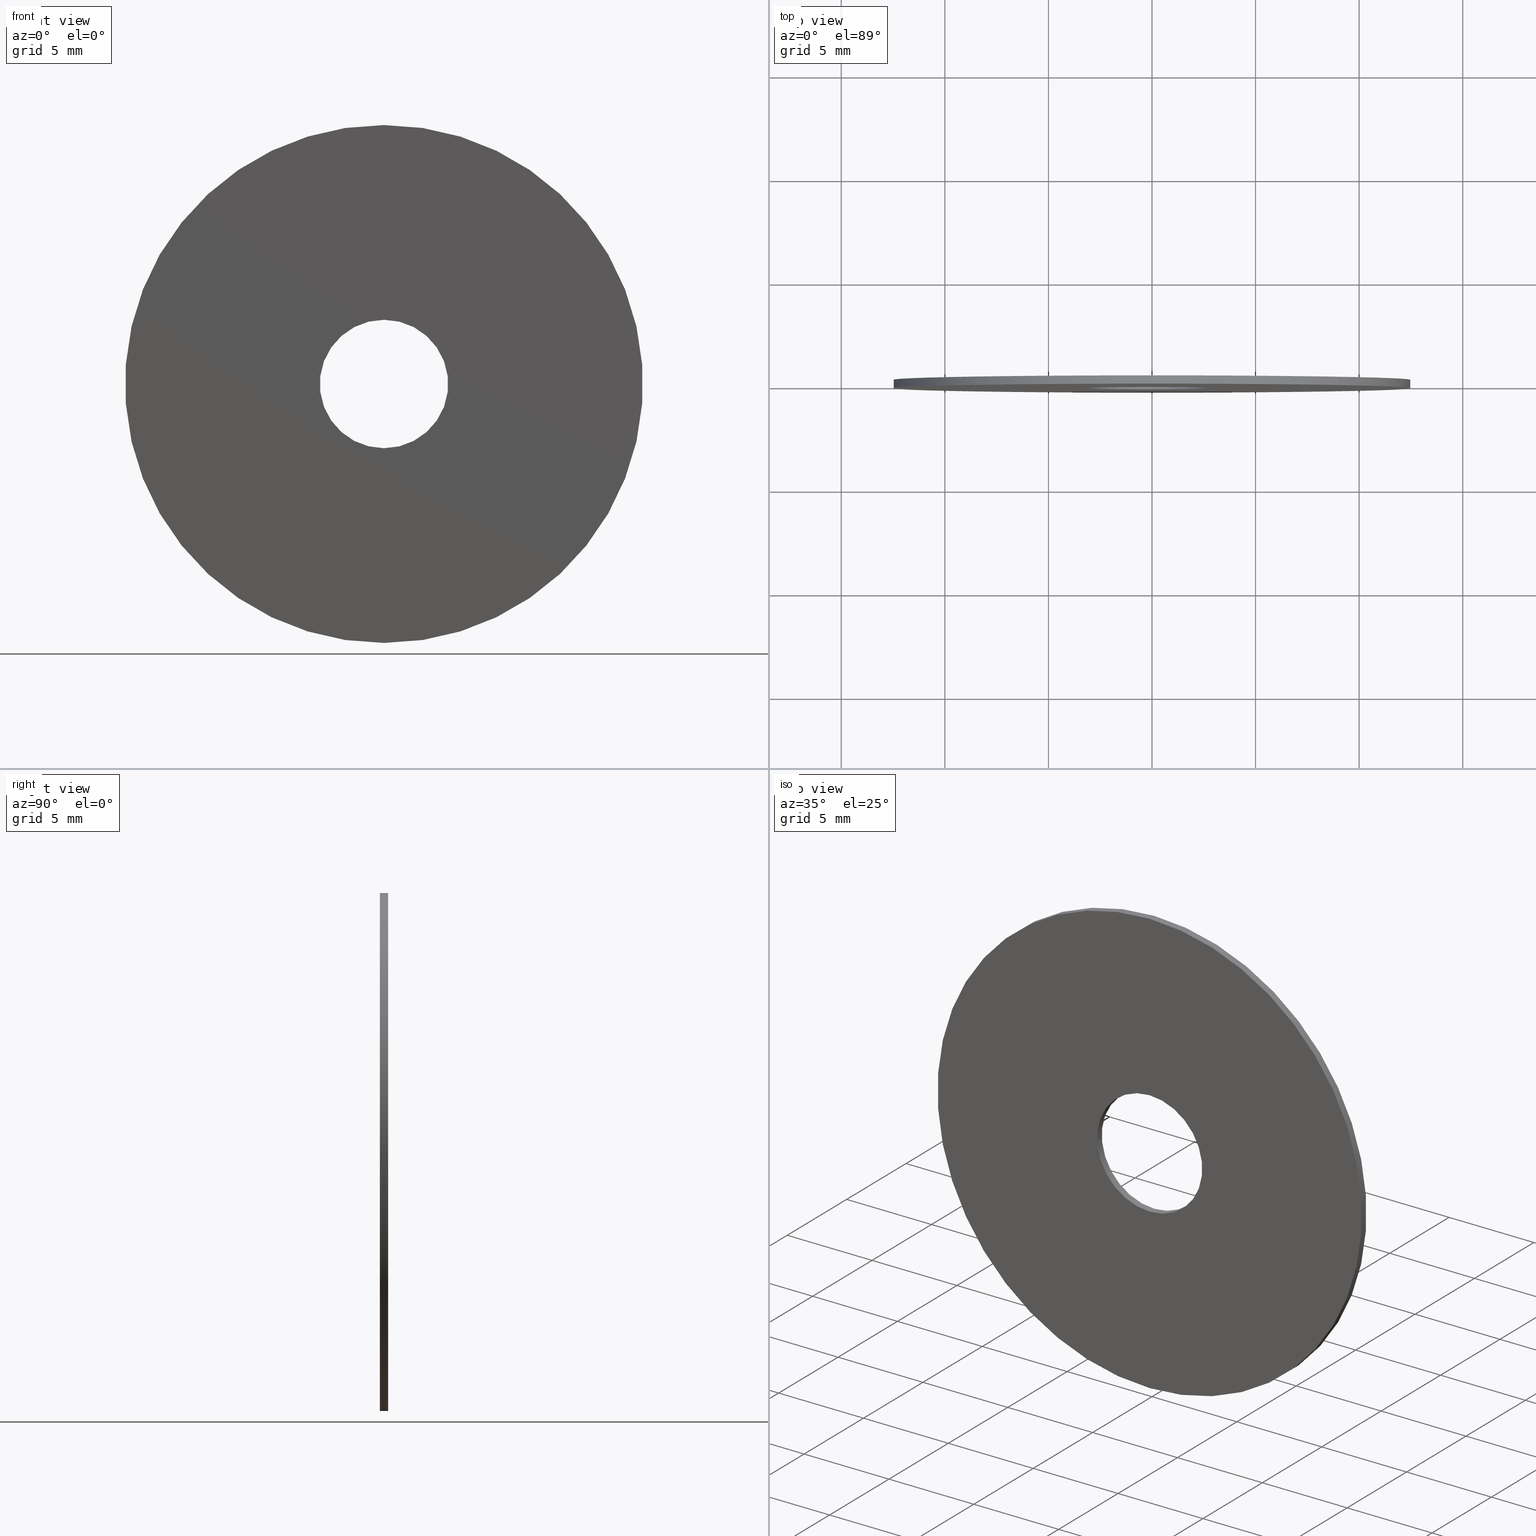
[diagram: canonical four-view strip — front | top / right | iso, engineering-drawing reading convention]
A machine part, canonical four-view strip (front | top / right | iso — engineering-drawing reading convention). The complete STEP part file that produces these views, byte-faithful:
ISO-10303-21;
HEADER;
FILE_DESCRIPTION (( 'STEP AP203' ),
    '1' );
FILE_NAME ('1.4.2.131-ZGH-25-DK0.4.STEP',
    '2024-04-06T05:15:16',
    ( '' ),
    ( '' ),
    'SwSTEP 2.0',
    'SolidWorks 2021',
    '' );
FILE_SCHEMA (( 'CONFIG_CONTROL_DESIGN' ));
ENDSEC;

DATA;
#1 = VERTEX_POINT ( 'NONE', #21 ) ;
#2 = ORIENTED_EDGE ( 'NONE', *, *, #155, .F. ) ;
#3 = AXIS2_PLACEMENT_3D ( 'NONE', #122, #217, #196 ) ;
#4 = AXIS2_PLACEMENT_3D ( 'NONE', #140, #214, #83 ) ;
#5 = EDGE_CURVE ( 'NONE', #135, #247, #35, .T. ) ;
#6 = DIRECTION ( 'NONE',  ( 0.000000000000000000, -0.000000000000000000, 1.000000000000000000 ) ) ;
#7 =( NAMED_UNIT ( * ) SI_UNIT ( $, .STERADIAN. ) SOLID_ANGLE_UNIT ( ) );
#8 = DIRECTION ( 'NONE',  ( -0.000000000000000000, -1.000000000000000000, -0.000000000000000000 ) ) ;
#9 = DIRECTION ( 'NONE',  ( 0.000000000000000000, 1.000000000000000000, 0.000000000000000000 ) ) ;
#10 = CC_DESIGN_APPROVAL ( #210, ( #127 ) ) ;
#11 = DIRECTION ( 'NONE',  ( 0.000000000000000000, 0.000000000000000000, 1.000000000000000000 ) ) ;
#12 = DATE_AND_TIME ( #242, #192 ) ;
#13 = VECTOR ( 'NONE', #154, 1000.000000000000000 ) ;
#14 = MECHANICAL_CONTEXT ( 'NONE', #134, 'mechanical' ) ;
#15 = APPROVAL_ROLE ( '' ) ;
#16 = CARTESIAN_POINT ( 'NONE',  ( 0.000000000000000000, -0.2000000000000000111, 0.000000000000000000 ) ) ;
#17 = PERSON_AND_ORGANIZATION ( #244, #23 ) ;
#18 = FACE_BOUND ( 'NONE', #208, .T. ) ;
#19 = ORIENTED_EDGE ( 'NONE', *, *, #106, .T. ) ;
#20 = ORIENTED_EDGE ( 'NONE', *, *, #202, .F. ) ;
#21 = CARTESIAN_POINT ( 'NONE',  ( 0.000000000000000000, -0.2000000000000000111, 3.100000000000000089 ) ) ;
#22 = CIRCLE ( 'NONE', #4, 12.50000000000000000 ) ;
#23 = ORGANIZATION ( 'δָ��', 'δָ��', '' ) ;
#24 = DIRECTION ( 'NONE',  ( 0.000000000000000000, 1.000000000000000000, 0.000000000000000000 ) ) ;
#25 = EDGE_CURVE ( 'NONE', #151, #1, #33, .T. ) ;
#26 = CARTESIAN_POINT ( 'NONE',  ( 1.530808498934191521E-15, 0.2000000000000000111, 12.50000000000000000 ) ) ;
#27 = AXIS2_PLACEMENT_3D ( 'NONE', #16, #112, #189 ) ;
#28 = PLANE ( 'NONE',  #101 ) ;
#29 = FACE_OUTER_BOUND ( 'NONE', #171, .T. ) ;
#30 = PERSON_AND_ORGANIZATION ( #244, #23 ) ;
#31 = DATE_TIME_ROLE ( 'creation_date' ) ;
#32 = CIRCLE ( 'NONE', #82, 12.50000000000000000 ) ;
#33 = CIRCLE ( 'NONE', #27, 3.100000000000000089 ) ;
#34 = DATE_AND_TIME ( #50, #246 ) ;
#35 = LINE ( 'NONE', #157, #13 ) ;
#36 = PERSON_AND_ORGANIZATION ( #244, #23 ) ;
#37 = VERTEX_POINT ( 'NONE', #93 ) ;
#38 = APPROVAL_ROLE ( '' ) ;
#39 = ORIENTED_EDGE ( 'NONE', *, *, #106, .F. ) ;
#40 = ADVANCED_FACE ( 'NONE', ( #188 ), #114, .T. ) ;
#41 = ORIENTED_EDGE ( 'NONE', *, *, #155, .T. ) ;
#42 = DIRECTION ( 'NONE',  ( 0.000000000000000000, 1.000000000000000000, 0.000000000000000000 ) ) ;
#43 = CLOSED_SHELL ( 'NONE', ( #178, #146, #40, #46, #240, #63 ) ) ;
#44 =( NAMED_UNIT ( * ) PLANE_ANGLE_UNIT ( ) SI_UNIT ( $, .RADIAN. ) );
#45 = DIRECTION ( 'NONE',  ( 0.000000000000000000, 1.000000000000000000, 0.000000000000000000 ) ) ;
#46 = ADVANCED_FACE ( 'NONE', ( #18, #97 ), #168, .T. ) ;
#47 = DIRECTION ( 'NONE',  ( -0.000000000000000000, 1.000000000000000000, -0.000000000000000000 ) ) ;
#48 = CARTESIAN_POINT ( 'NONE',  ( 3.796405077356794918E-16, -0.2000000000000000111, -3.100000000000000089 ) ) ;
#49 = DIRECTION ( 'NONE',  ( 0.000000000000000000, 0.000000000000000000, 1.000000000000000000 ) ) ;
#50 = CALENDAR_DATE ( 2024, 6, 4 ) ;
#51 = DIRECTION ( 'NONE',  ( 0.000000000000000000, 0.000000000000000000, 1.000000000000000000 ) ) ;
#52 = APPROVAL_DATE_TIME ( #107, #243 ) ;
#53 = ORIENTED_EDGE ( 'NONE', *, *, #232, .F. ) ;
#54 = LOCAL_TIME ( 13, 15, 16.00000000000000000, #111 ) ;
#55 = PERSON_AND_ORGANIZATION ( #244, #23 ) ;
#56 = EDGE_LOOP ( 'NONE', ( #90, #152, #41, #131 ) ) ;
#57 = ORIENTED_EDGE ( 'NONE', *, *, #137, .T. ) ;
#58 = VERTEX_POINT ( 'NONE', #174 ) ;
#59 = APPROVAL ( #91, 'δָ��' ) ;
#60 = AXIS2_PLACEMENT_3D ( 'NONE', #234, #65, #236 ) ;
#61 = DIRECTION ( 'NONE',  ( 0.000000000000000000, 0.000000000000000000, 1.000000000000000000 ) ) ;
#62 = DIRECTION ( 'NONE',  ( 0.000000000000000000, 0.000000000000000000, 1.000000000000000000 ) ) ;
#63 = ADVANCED_FACE ( 'NONE', ( #223 ), #159, .F. ) ;
#64 = AXIS2_PLACEMENT_3D ( 'NONE', #109, #51, #200 ) ;
#65 = DIRECTION ( 'NONE',  ( -0.000000000000000000, 1.000000000000000000, -0.000000000000000000 ) ) ;
#66 = LINE ( 'NONE', #119, #162 ) ;
#67 = CARTESIAN_POINT ( 'NONE',  ( 0.000000000000000000, 0.2000000000000000111, 0.000000000000000000 ) ) ;
#68 = CC_DESIGN_PERSON_AND_ORGANIZATION_ASSIGNMENT ( #36, #74, ( #190 ) ) ;
#69 = COORDINATED_UNIVERSAL_TIME_OFFSET ( 8, 0, .AHEAD. ) ;
#70 = COORDINATED_UNIVERSAL_TIME_OFFSET ( 8, 0, .AHEAD. ) ;
#71 = SECURITY_CLASSIFICATION_LEVEL ( 'unclassified' ) ;
#72 = AXIS2_PLACEMENT_3D ( 'NONE', #76, #138, #231 ) ;
#73 = ORIENTED_EDGE ( 'NONE', *, *, #221, .T. ) ;
#74 = PERSON_AND_ORGANIZATION_ROLE ( 'creator' ) ;
#75 = EDGE_LOOP ( 'NONE', ( #19, #228 ) ) ;
#76 = CARTESIAN_POINT ( 'NONE',  ( 0.000000000000000000, 0.2000000000000000111, 0.000000000000000000 ) ) ;
#77 = EDGE_LOOP ( 'NONE', ( #53, #185, #57, #209 ) ) ;
#78 = DIRECTION ( 'NONE',  ( -0.000000000000000000, 1.000000000000000000, -0.000000000000000000 ) ) ;
#79 = CYLINDRICAL_SURFACE ( 'NONE', #141, 3.100000000000000089 ) ;
#80 = CC_DESIGN_DATE_AND_TIME_ASSIGNMENT ( #34, #86, ( #128 ) ) ;
#81 = LOCAL_TIME ( 13, 15, 16.00000000000000000, #201 ) ;
#82 = AXIS2_PLACEMENT_3D ( 'NONE', #144, #198, #62 ) ;
#83 = DIRECTION ( 'NONE',  ( 0.000000000000000000, 0.000000000000000000, 1.000000000000000000 ) ) ;
#84 = DIRECTION ( 'NONE',  ( 0.000000000000000000, 1.000000000000000000, 0.000000000000000000 ) ) ;
#85 = PERSON_AND_ORGANIZATION ( #244, #23 ) ;
#86 = DATE_TIME_ROLE ( 'classification_date' ) ;
#87 = VECTOR ( 'NONE', #197, 1000.000000000000000 ) ;
#88 = EDGE_CURVE ( 'NONE', #247, #227, #22, .T. ) ;
#89 = PERSON_AND_ORGANIZATION ( #244, #23 ) ;
#90 = ORIENTED_EDGE ( 'NONE', *, *, #25, .F. ) ;
#91 = APPROVAL_STATUS ( 'not_yet_approved' ) ;
#92 = CARTESIAN_POINT ( 'NONE',  ( 0.000000000000000000, 0.2000000000000000111, 0.000000000000000000 ) ) ;
#93 = CARTESIAN_POINT ( 'NONE',  ( 1.530808498934191521E-15, 0.2000000000000000111, 12.50000000000000000 ) ) ;
#94 = ORIENTED_EDGE ( 'NONE', *, *, #25, .T. ) ;
#95 = AXIS2_PLACEMENT_3D ( 'NONE', #67, #160, #49 ) ;
#96 = APPLICATION_CONTEXT ( 'configuration controlled 3d designs of mechanical parts and assemblies' ) ;
#97 = FACE_OUTER_BOUND ( 'NONE', #75, .T. ) ;
#98 = CC_DESIGN_APPROVAL ( #59, ( #190 ) ) ;
#99 = CARTESIAN_POINT ( 'NONE',  ( 0.000000000000000000, 0.2000000000000000111, 0.000000000000000000 ) ) ;
#100 = CARTESIAN_POINT ( 'NONE',  ( 0.000000000000000000, 0.2000000000000000111, -12.50000000000000000 ) ) ;
#101 = AXIS2_PLACEMENT_3D ( 'NONE', #103, #84, #104 ) ;
#102 = CIRCLE ( 'NONE', #3, 3.100000000000000089 ) ;
#103 = CARTESIAN_POINT ( 'NONE',  ( 0.000000000000000000, -0.2000000000000000111, 0.000000000000000000 ) ) ;
#104 = DIRECTION ( 'NONE',  ( 0.000000000000000000, -0.000000000000000000, 1.000000000000000000 ) ) ;
#105 = APPROVAL_STATUS ( 'not_yet_approved' ) ;
#106 = EDGE_CURVE ( 'NONE', #135, #37, #32, .T. ) ;
#107 = DATE_AND_TIME ( #184, #81 ) ;
#108 = EDGE_LOOP ( 'NONE', ( #187, #39, #172, #248 ) ) ;
#109 = CARTESIAN_POINT ( 'NONE',  ( 0.000000000000000000, 0.000000000000000000, 0.000000000000000000 ) ) ;
#110 = ORIENTED_EDGE ( 'NONE', *, *, #88, .F. ) ;
#111 = COORDINATED_UNIVERSAL_TIME_OFFSET ( 8, 0, .AHEAD. ) ;
#112 = DIRECTION ( 'NONE',  ( 0.000000000000000000, 1.000000000000000000, 0.000000000000000000 ) ) ;
#113 = CC_DESIGN_DATE_AND_TIME_ASSIGNMENT ( #145, #31, ( #127 ) ) ;
#114 = CYLINDRICAL_SURFACE ( 'NONE', #72, 12.50000000000000000 ) ;
#115 = ORIENTED_EDGE ( 'NONE', *, *, #221, .F. ) ;
#116 = EDGE_CURVE ( 'NONE', #37, #135, #182, .T. ) ;
#117 = CIRCLE ( 'NONE', #173, 12.50000000000000000 ) ;
#118 = UNCERTAINTY_MEASURE_WITH_UNIT (LENGTH_MEASURE( 1.000000000000000082E-05 ), #176, 'distance_accuracy_value', 'NONE');
#119 = CARTESIAN_POINT ( 'NONE',  ( 0.000000000000000000, -0.2000000000000000111, 3.100000000000000089 ) ) ;
#120 = APPROVAL_PERSON_ORGANIZATION ( #55, #210, #38 ) ;
#121 = CARTESIAN_POINT ( 'NONE',  ( 3.796405077356794918E-16, 0.2000000000000000111, -3.100000000000000089 ) ) ;
#122 = CARTESIAN_POINT ( 'NONE',  ( 0.000000000000000000, -0.2000000000000000111, 0.000000000000000000 ) ) ;
#123 = CARTESIAN_POINT ( 'NONE',  ( 0.000000000000000000, -0.2000000000000000111, 0.000000000000000000 ) ) ;
#124 = FACE_BOUND ( 'NONE', #204, .T. ) ;
#125 = PERSON_AND_ORGANIZATION ( #244, #23 ) ;
#126 = EDGE_CURVE ( 'NONE', #1, #151, #102, .T. ) ;
#127 = PRODUCT_DEFINITION ( 'δ֪', '', #190, #175 ) ;
#128 = SECURITY_CLASSIFICATION ( '', '', #71 ) ;
#129 = APPROVAL_ROLE ( '' ) ;
#130 = AXIS2_PLACEMENT_3D ( 'NONE', #213, #193, #165 ) ;
#131 = ORIENTED_EDGE ( 'NONE', *, *, #137, .F. ) ;
#132 = VERTEX_POINT ( 'NONE', #121 ) ;
#133 = DATE_AND_TIME ( #186, #235 ) ;
#134 = APPLICATION_CONTEXT ( 'configuration controlled 3d designs of mechanical parts and assemblies' ) ;
#135 = VERTEX_POINT ( 'NONE', #100 ) ;
#136 = ORIENTED_EDGE ( 'NONE', *, *, #126, .T. ) ;
#137 = EDGE_CURVE ( 'NONE', #1, #58, #66, .T. ) ;
#138 = DIRECTION ( 'NONE',  ( -0.000000000000000000, -1.000000000000000000, -0.000000000000000000 ) ) ;
#139 = LINE ( 'NONE', #26, #181 ) ;
#140 = CARTESIAN_POINT ( 'NONE',  ( 0.000000000000000000, -0.2000000000000000111, 0.000000000000000000 ) ) ;
#141 = AXIS2_PLACEMENT_3D ( 'NONE', #216, #47, #11 ) ;
#142 = CARTESIAN_POINT ( 'NONE',  ( 0.000000000000000000, 0.2000000000000000111, 0.000000000000000000 ) ) ;
#143 = LINE ( 'NONE', #48, #87 ) ;
#144 = CARTESIAN_POINT ( 'NONE',  ( 0.000000000000000000, 0.2000000000000000111, 0.000000000000000000 ) ) ;
#145 = DATE_AND_TIME ( #241, #54 ) ;
#146 = ADVANCED_FACE ( 'NONE', ( #180 ), #195, .T. ) ;
#147 = SHAPE_DEFINITION_REPRESENTATION ( #153, #233 ) ;
#148 = ORIENTED_EDGE ( 'NONE', *, *, #5, .F. ) ;
#149 = APPLICATION_PROTOCOL_DEFINITION ( 'international standard', 'config_control_design', 1994, #134 ) ;
#150 = APPROVAL_PERSON_ORGANIZATION ( #30, #243, #15 ) ;
#151 = VERTEX_POINT ( 'NONE', #183 ) ;
#152 = ORIENTED_EDGE ( 'NONE', *, *, #232, .T. ) ;
#153 = PRODUCT_DEFINITION_SHAPE ( 'NONE', 'NONE',  #127 ) ;
#154 = DIRECTION ( 'NONE',  ( -0.000000000000000000, -1.000000000000000000, -0.000000000000000000 ) ) ;
#155 = EDGE_CURVE ( 'NONE', #132, #58, #163, .T. ) ;
#156 = CC_DESIGN_APPROVAL ( #243, ( #128 ) ) ;
#157 = CARTESIAN_POINT ( 'NONE',  ( 0.000000000000000000, 0.2000000000000000111, -12.50000000000000000 ) ) ;
#158 = PRODUCT_RELATED_PRODUCT_CATEGORY ( 'detail', '', ( #177 ) ) ;
#159 = CYLINDRICAL_SURFACE ( 'NONE', #60, 3.100000000000000089 ) ;
#160 = DIRECTION ( 'NONE',  ( 0.000000000000000000, 1.000000000000000000, 0.000000000000000000 ) ) ;
#161 = EDGE_CURVE ( 'NONE', #37, #227, #139, .T. ) ;
#162 = VECTOR ( 'NONE', #78, 1000.000000000000000 ) ;
#163 = CIRCLE ( 'NONE', #169, 3.100000000000000089 ) ;
#164 = CARTESIAN_POINT ( 'NONE',  ( 1.530808498934191521E-15, -0.2000000000000000111, 12.50000000000000000 ) ) ;
#165 = DIRECTION ( 'NONE',  ( 0.000000000000000000, 0.000000000000000000, -1.000000000000000000 ) ) ;
#166 = PERSON_AND_ORGANIZATION_ROLE ( 'design_supplier' ) ;
#167 = PERSON_AND_ORGANIZATION ( #244, #23 ) ;
#168 = PLANE ( 'NONE',  #212 ) ;
#169 = AXIS2_PLACEMENT_3D ( 'NONE', #99, #45, #179 ) ;
#170 = COORDINATED_UNIVERSAL_TIME_OFFSET ( 8, 0, .AHEAD. ) ;
#171 = EDGE_LOOP ( 'NONE', ( #110, #115 ) ) ;
#172 = ORIENTED_EDGE ( 'NONE', *, *, #5, .T. ) ;
#173 = AXIS2_PLACEMENT_3D ( 'NONE', #123, #9, #61 ) ;
#174 = CARTESIAN_POINT ( 'NONE',  ( 0.000000000000000000, 0.2000000000000000111, 3.100000000000000089 ) ) ;
#175 = DESIGN_CONTEXT ( 'detailed design', #96, 'design' ) ;
#176 =( LENGTH_UNIT ( ) NAMED_UNIT ( * ) SI_UNIT ( .MILLI., .METRE. ) );
#177 = PRODUCT ( '1.4.2.131-ZGH-25-DK0.4', '1.4.2.131-ZGH-25-DK0.4', '', ( #14 ) ) ;
#178 = ADVANCED_FACE ( 'NONE', ( #218 ), #79, .F. ) ;
#179 = DIRECTION ( 'NONE',  ( 0.000000000000000000, 0.000000000000000000, 1.000000000000000000 ) ) ;
#180 = FACE_OUTER_BOUND ( 'NONE', #229, .T. ) ;
#181 = VECTOR ( 'NONE', #8, 1000.000000000000000 ) ;
#182 = CIRCLE ( 'NONE', #194, 12.50000000000000000 ) ;
#183 = CARTESIAN_POINT ( 'NONE',  ( 3.796405077356794918E-16, -0.2000000000000000111, -3.100000000000000089 ) ) ;
#184 = CALENDAR_DATE ( 2024, 6, 4 ) ;
#185 = ORIENTED_EDGE ( 'NONE', *, *, #126, .F. ) ;
#186 = CALENDAR_DATE ( 2024, 6, 4 ) ;
#187 = ORIENTED_EDGE ( 'NONE', *, *, #161, .F. ) ;
#188 = FACE_OUTER_BOUND ( 'NONE', #108, .T. ) ;
#189 = DIRECTION ( 'NONE',  ( 0.000000000000000000, 0.000000000000000000, 1.000000000000000000 ) ) ;
#190 = PRODUCT_DEFINITION_FORMATION_WITH_SPECIFIED_SOURCE ( '�κ�', '', #177, .NOT_KNOWN. ) ;
#191 = MANIFOLD_SOLID_BREP ( '�г�-����3', #43 ) ;
#192 = LOCAL_TIME ( 13, 15, 16.00000000000000000, #170 ) ;
#193 = DIRECTION ( 'NONE',  ( -0.000000000000000000, -1.000000000000000000, -0.000000000000000000 ) ) ;
#194 = AXIS2_PLACEMENT_3D ( 'NONE', #142, #24, #237 ) ;
#195 = CYLINDRICAL_SURFACE ( 'NONE', #130, 12.50000000000000000 ) ;
#196 = DIRECTION ( 'NONE',  ( 0.000000000000000000, 0.000000000000000000, 1.000000000000000000 ) ) ;
#197 = DIRECTION ( 'NONE',  ( -0.000000000000000000, 1.000000000000000000, -0.000000000000000000 ) ) ;
#198 = DIRECTION ( 'NONE',  ( 0.000000000000000000, 1.000000000000000000, 0.000000000000000000 ) ) ;
#199 = CC_DESIGN_PERSON_AND_ORGANIZATION_ASSIGNMENT ( #167, #245, ( #127 ) ) ;
#200 = DIRECTION ( 'NONE',  ( 1.000000000000000000, 0.000000000000000000, 0.000000000000000000 ) ) ;
#201 = COORDINATED_UNIVERSAL_TIME_OFFSET ( 8, 0, .AHEAD. ) ;
#202 = EDGE_CURVE ( 'NONE', #58, #132, #225, .T. ) ;
#203 = APPROVAL_PERSON_ORGANIZATION ( #17, #59, #129 ) ;
#204 = EDGE_LOOP ( 'NONE', ( #136, #94 ) ) ;
#205 = PERSON_AND_ORGANIZATION_ROLE ( 'design_owner' ) ;
#206 = ORIENTED_EDGE ( 'NONE', *, *, #161, .T. ) ;
#207 = APPLICATION_PROTOCOL_DEFINITION ( 'international standard', 'config_control_design', 1994, #96 ) ;
#208 = EDGE_LOOP ( 'NONE', ( #20, #2 ) ) ;
#209 = ORIENTED_EDGE ( 'NONE', *, *, #202, .T. ) ;
#210 = APPROVAL ( #226, 'δָ��' ) ;
#211 = ORIENTED_EDGE ( 'NONE', *, *, #116, .F. ) ;
#212 = AXIS2_PLACEMENT_3D ( 'NONE', #92, #42, #6 ) ;
#213 = CARTESIAN_POINT ( 'NONE',  ( 0.000000000000000000, 0.2000000000000000111, 0.000000000000000000 ) ) ;
#214 = DIRECTION ( 'NONE',  ( 0.000000000000000000, 1.000000000000000000, 0.000000000000000000 ) ) ;
#215 = CC_DESIGN_PERSON_AND_ORGANIZATION_ASSIGNMENT ( #89, #239, ( #128 ) ) ;
#216 = CARTESIAN_POINT ( 'NONE',  ( 0.000000000000000000, -0.2000000000000000111, 0.000000000000000000 ) ) ;
#217 = DIRECTION ( 'NONE',  ( 0.000000000000000000, 1.000000000000000000, 0.000000000000000000 ) ) ;
#218 = FACE_OUTER_BOUND ( 'NONE', #56, .T. ) ;
#219 = APPROVAL_DATE_TIME ( #133, #210 ) ;
#220 = APPROVAL_DATE_TIME ( #12, #59 ) ;
#221 = EDGE_CURVE ( 'NONE', #227, #247, #117, .T. ) ;
#222 = CC_DESIGN_SECURITY_CLASSIFICATION ( #128, ( #190 ) ) ;
#223 = FACE_OUTER_BOUND ( 'NONE', #77, .T. ) ;
#224 = CC_DESIGN_PERSON_AND_ORGANIZATION_ASSIGNMENT ( #85, #166, ( #190 ) ) ;
#225 = CIRCLE ( 'NONE', #95, 3.100000000000000089 ) ;
#226 = APPROVAL_STATUS ( 'not_yet_approved' ) ;
#227 = VERTEX_POINT ( 'NONE', #164 ) ;
#228 = ORIENTED_EDGE ( 'NONE', *, *, #116, .T. ) ;
#229 = EDGE_LOOP ( 'NONE', ( #211, #206, #73, #148 ) ) ;
#230 =( GEOMETRIC_REPRESENTATION_CONTEXT ( 3 ) GLOBAL_UNCERTAINTY_ASSIGNED_CONTEXT ( ( #118 ) ) GLOBAL_UNIT_ASSIGNED_CONTEXT ( ( #176, #44, #7 ) ) REPRESENTATION_CONTEXT ( 'NONE', 'WORKASPACE' ) );
#231 = DIRECTION ( 'NONE',  ( 0.000000000000000000, 0.000000000000000000, -1.000000000000000000 ) ) ;
#232 = EDGE_CURVE ( 'NONE', #151, #132, #143, .T. ) ;
#233 = ADVANCED_BREP_SHAPE_REPRESENTATION ( '1.4.2.131-ZGH-25-DK0.4', ( #191, #64 ), #230 ) ;
#234 = CARTESIAN_POINT ( 'NONE',  ( 0.000000000000000000, -0.2000000000000000111, 0.000000000000000000 ) ) ;
#235 = LOCAL_TIME ( 13, 15, 16.00000000000000000, #70 ) ;
#236 = DIRECTION ( 'NONE',  ( 0.000000000000000000, 0.000000000000000000, 1.000000000000000000 ) ) ;
#237 = DIRECTION ( 'NONE',  ( 0.000000000000000000, 0.000000000000000000, 1.000000000000000000 ) ) ;
#238 = CARTESIAN_POINT ( 'NONE',  ( 0.000000000000000000, -0.2000000000000000111, -12.50000000000000000 ) ) ;
#239 = PERSON_AND_ORGANIZATION_ROLE ( 'classification_officer' ) ;
#240 = ADVANCED_FACE ( 'NONE', ( #124, #29 ), #28, .F. ) ;
#241 = CALENDAR_DATE ( 2024, 6, 4 ) ;
#242 = CALENDAR_DATE ( 2024, 6, 4 ) ;
#243 = APPROVAL ( #105, 'δָ��' ) ;
#244 = PERSON ( 'δָ��', 'δָ��', 'δָ��', ('δָ��'), ('δָ��'), ('δָ��') ) ;
#245 = PERSON_AND_ORGANIZATION_ROLE ( 'creator' ) ;
#246 = LOCAL_TIME ( 13, 15, 16.00000000000000000, #69 ) ;
#247 = VERTEX_POINT ( 'NONE', #238 ) ;
#248 = ORIENTED_EDGE ( 'NONE', *, *, #88, .T. ) ;
#249 = CC_DESIGN_PERSON_AND_ORGANIZATION_ASSIGNMENT ( #125, #205, ( #177 ) ) ;
ENDSEC;
END-ISO-10303-21;
